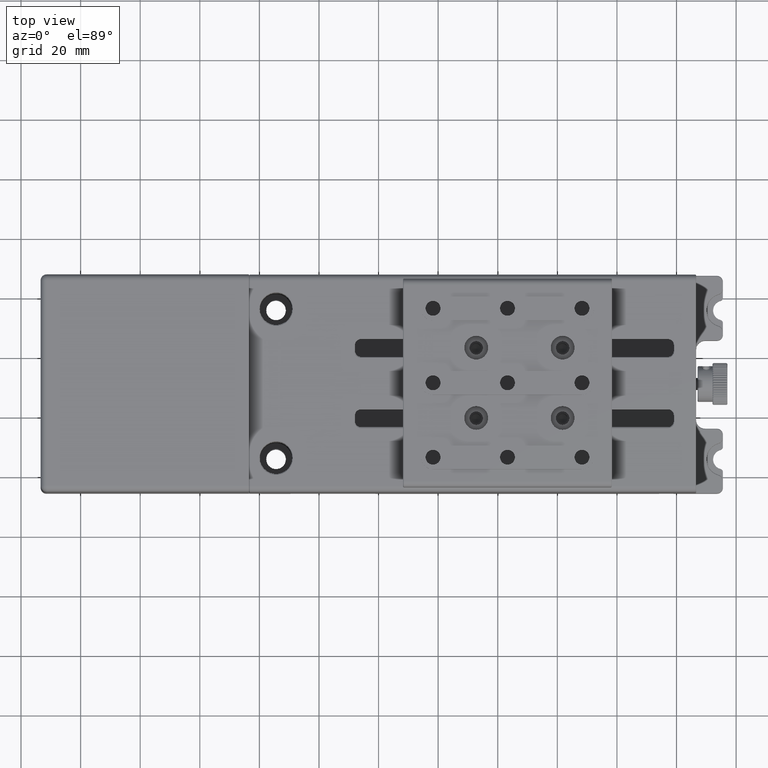
[diagram: clean part render]
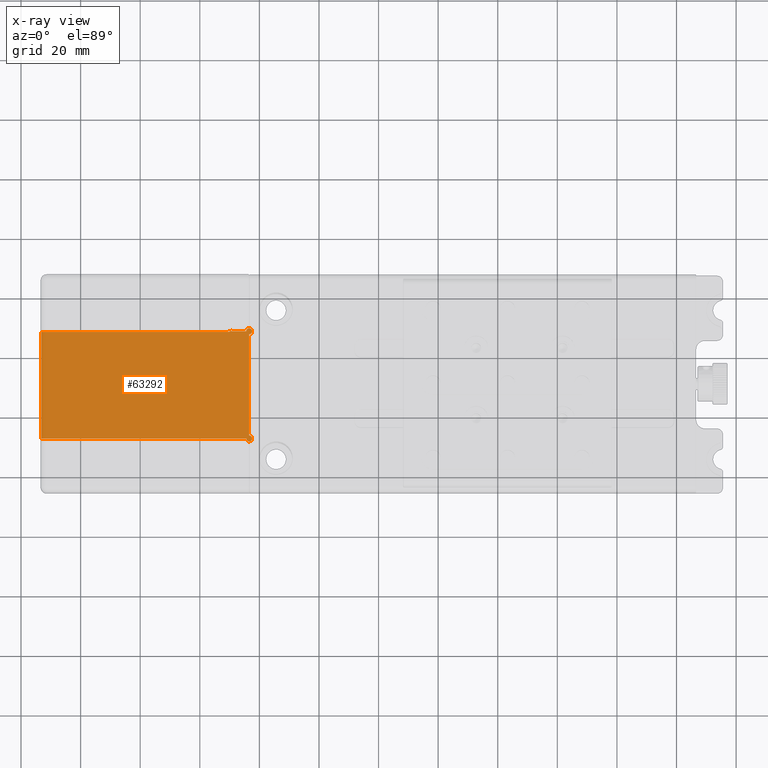
[diagram: x-ray — body ghosted, one internal face saturated and labeled with its STEP entity id]
A machine part, top view, then the same camera in x-ray: the body is ghosted and one INTERNAL B-rep face — a face not visible from any outside direction — is saturated and labeled: STEP entity #63292.
In plain terms, the highlighted planar face has unit normal (0, 0, 1).
Its self-contained STEP definition (entity closure, byte-faithful):
#7 = PLANE ( 'NONE',  #30559 ) ;
#781 = LINE ( 'NONE', #34379, #58606 ) ;
#801 = CARTESIAN_POINT ( 'NONE',  ( -89.42525998140230570, 9.367477591676118820, -3.000000000000000000 ) ) ;
#1247 = CIRCLE ( 'NONE', #4775, 1.000000000000000888 ) ;
#2485 = DIRECTION ( 'NONE',  ( 1.000000000000000000, 0.000000000000000000, 0.000000000000000000 ) ) ;
#3500 = EDGE_CURVE ( 'NONE', #70101, #24458, #3910, .T. ) ;
#3910 = LINE ( 'NONE', #65853, #70613 ) ;
#4615 = ORIENTED_EDGE ( 'NONE', *, *, #52263, .T. ) ;
#4775 = AXIS2_PLACEMENT_3D ( 'NONE', #22743, #55557, #33079 ) ;
#5593 = LINE ( 'NONE', #46146, #70394 ) ;
#6591 = CARTESIAN_POINT ( 'NONE',  ( -90.42525998140230570, 8.830802549747209795, -3.000000000000000000 ) ) ;
#8951 = CARTESIAN_POINT ( 'NONE',  ( -90.42525998140230570, 10.03080254974721974, -3.000000000000000000 ) ) ;
#9064 = AXIS2_PLACEMENT_3D ( 'NONE', #8951, #26312, #58749 ) ;
#10655 = LINE ( 'NONE', #21737, #65155 ) ;
#11822 = FACE_OUTER_BOUND ( 'NONE', #36648, .T. ) ;
#11973 = CARTESIAN_POINT ( 'NONE',  ( -153.4252599814024904, -26.96919745025279624, -3.000000000000000000 ) ) ;
#12900 = DIRECTION ( 'NONE',  ( 0.000000000000000000, 0.000000000000000000, 1.000000000000000000 ) ) ;
#13110 = VERTEX_POINT ( 'NONE', #14148 ) ;
#13410 = VERTEX_POINT ( 'NONE', #58337 ) ;
#14148 = CARTESIAN_POINT ( 'NONE',  ( -84.42525998140229149, -26.96919745025279624, -3.000000000000000000 ) ) ;
#15298 = CARTESIAN_POINT ( 'NONE',  ( -83.42525998140230570, -26.96919745025279624, -3.000000000000000000 ) ) ;
#16621 = EDGE_CURVE ( 'NONE', #30683, #70101, #63309, .T. ) ;
#17027 = DIRECTION ( 'NONE',  ( 0.000000000000000000, 0.000000000000000000, 1.000000000000000000 ) ) ;
#17694 = ORIENTED_EDGE ( 'NONE', *, *, #34102, .T. ) ;
#19442 = EDGE_CURVE ( 'NONE', #57499, #24204, #49325, .T. ) ;
#21737 = CARTESIAN_POINT ( 'NONE',  ( -83.42525998140230570, 9.030802549747210861, -3.000000000000000000 ) ) ;
#22179 = CARTESIAN_POINT ( 'NONE',  ( -153.4252599814024904, 26.03080254974719665, -3.000000000000000000 ) ) ;
#22743 = CARTESIAN_POINT ( 'NONE',  ( -83.42525998140230570, 9.030802549747210861, -3.000000000000000000 ) ) ;
#24204 = VERTEX_POINT ( 'NONE', #36168 ) ;
#24458 = VERTEX_POINT ( 'NONE', #61908 ) ;
#25343 = ORIENTED_EDGE ( 'NONE', *, *, #68075, .T. ) ;
#25694 = DIRECTION ( 'NONE',  ( -1.000000000000000000, 0.000000000000000000, 0.000000000000000000 ) ) ;
#26312 = DIRECTION ( 'NONE',  ( 0.000000000000000000, 0.000000000000000000, -1.000000000000000000 ) ) ;
#28088 = DIRECTION ( 'NONE',  ( 0.000000000000000000, 0.000000000000000000, 1.000000000000000000 ) ) ;
#28118 = DIRECTION ( 'NONE',  ( 0.000000000000000000, -1.000000000000000000, 0.000000000000000000 ) ) ;
#30559 = AXIS2_PLACEMENT_3D ( 'NONE', #22179, #28088, #50927 ) ;
#30683 = VERTEX_POINT ( 'NONE', #801 ) ;
#30958 = ORIENTED_EDGE ( 'NONE', *, *, #55606, .T. ) ;
#32799 = DIRECTION ( 'NONE',  ( 0.000000000000000000, 1.000000000000000000, 0.000000000000000000 ) ) ;
#32894 = CARTESIAN_POINT ( 'NONE',  ( -83.42525998140230570, -26.96919745025279624, -3.000000000000000000 ) ) ;
#33079 = DIRECTION ( 'NONE',  ( 1.000000000000000000, 0.000000000000000000, 0.000000000000000000 ) ) ;
#33442 = CIRCLE ( 'NONE', #62923, 1.000000000000000888 ) ;
#34102 = EDGE_CURVE ( 'NONE', #72892, #13110, #45547, .T. ) ;
#34379 = CARTESIAN_POINT ( 'NONE',  ( -153.4252599814024904, 9.030802549747210861, -3.000000000000000000 ) ) ;
#36168 = CARTESIAN_POINT ( 'NONE',  ( -82.42525998140230570, 9.030802549747210861, -3.000000000000000000 ) ) ;
#36648 = EDGE_LOOP ( 'NONE', ( #57105, #37797, #70025, #48075, #17694, #25343, #30958, #57078, #42074, #38704, #4615 ) ) ;
#37797 = ORIENTED_EDGE ( 'NONE', *, *, #16621, .T. ) ;
#38303 = CARTESIAN_POINT ( 'NONE',  ( -153.2252599814025018, -26.96919745025279624, -3.000000000000000000 ) ) ;
#38377 = DIRECTION ( 'NONE',  ( 1.224646799147351975E-16, -1.000000000000000000, 0.000000000000000000 ) ) ;
#38589 = VERTEX_POINT ( 'NONE', #44340 ) ;
#38704 = ORIENTED_EDGE ( 'NONE', *, *, #64151, .T. ) ;
#38740 = LINE ( 'NONE', #61208, #72433 ) ;
#38876 = AXIS2_PLACEMENT_3D ( 'NONE', #15298, #54382, #2485 ) ;
#38933 = EDGE_CURVE ( 'NONE', #24458, #72892, #38740, .T. ) ;
#39685 = DIRECTION ( 'NONE',  ( 1.000000000000000000, 0.000000000000000000, 0.000000000000000000 ) ) ;
#41681 = DIRECTION ( 'NONE',  ( 1.000000000000000000, 0.000000000000000000, 0.000000000000000000 ) ) ;
#42074 = ORIENTED_EDGE ( 'NONE', *, *, #19442, .T. ) ;
#43596 = DIRECTION ( 'NONE',  ( 1.000000000000000000, 0.000000000000000000, 0.000000000000000000 ) ) ;
#44340 = CARTESIAN_POINT ( 'NONE',  ( -82.42525998140230570, -26.96919745025279624, -3.000000000000000000 ) ) ;
#45081 = DIRECTION ( 'NONE',  ( -1.000000000000000000, 4.956352788505159693E-17, 0.000000000000000000 ) ) ;
#45547 = LINE ( 'NONE', #11973, #48352 ) ;
#46146 = CARTESIAN_POINT ( 'NONE',  ( -89.42525998140230570, 27.53080254974720020, -3.000000000000000000 ) ) ;
#48075 = ORIENTED_EDGE ( 'NONE', *, *, #38933, .T. ) ;
#48352 = VECTOR ( 'NONE', #39685, 1000.000000000000000 ) ;
#49325 = CIRCLE ( 'NONE', #54018, 1.000000000000000888 ) ;
#50927 = DIRECTION ( 'NONE',  ( 1.000000000000000000, 0.000000000000000000, 0.000000000000000000 ) ) ;
#52194 = EDGE_CURVE ( 'NONE', #30683, #69087, #5593, .T. ) ;
#52263 = EDGE_CURVE ( 'NONE', #53842, #69087, #781, .T. ) ;
#53842 = VERTEX_POINT ( 'NONE', #71968 ) ;
#54018 = AXIS2_PLACEMENT_3D ( 'NONE', #63432, #12900, #41681 ) ;
#54382 = DIRECTION ( 'NONE',  ( 0.000000000000000000, 0.000000000000000000, 1.000000000000000000 ) ) ;
#55378 = CIRCLE ( 'NONE', #38876, 1.000000000000000888 ) ;
#55557 = DIRECTION ( 'NONE',  ( 0.000000000000000000, 0.000000000000000000, 1.000000000000000000 ) ) ;
#55606 = EDGE_CURVE ( 'NONE', #38589, #13410, #55378, .T. ) ;
#57078 = ORIENTED_EDGE ( 'NONE', *, *, #59821, .T. ) ;
#57105 = ORIENTED_EDGE ( 'NONE', *, *, #52194, .F. ) ;
#57499 = VERTEX_POINT ( 'NONE', #68147 ) ;
#58337 = CARTESIAN_POINT ( 'NONE',  ( -83.42525998140230570, -25.96919745025279980, -3.000000000000000000 ) ) ;
#58606 = VECTOR ( 'NONE', #45081, 1000.000000000000000 ) ;
#58749 = DIRECTION ( 'NONE',  ( 1.000000000000000000, 0.000000000000000000, 0.000000000000000000 ) ) ;
#59821 = EDGE_CURVE ( 'NONE', #13410, #57499, #10655, .T. ) ;
#61208 = CARTESIAN_POINT ( 'NONE',  ( -153.2252599814025018, -26.96919745025279624, -3.000000000000000000 ) ) ;
#61908 = CARTESIAN_POINT ( 'NONE',  ( -153.2252599814025018, 8.830802549747209795, -3.000000000000000000 ) ) ;
#62923 = AXIS2_PLACEMENT_3D ( 'NONE', #32894, #17027, #43596 ) ;
#63292 = ADVANCED_FACE ( 'NONE', ( #11822 ), #7, .T. ) ;
#63309 = CIRCLE ( 'NONE', #9064, 1.200000000000006617 ) ;
#63432 = CARTESIAN_POINT ( 'NONE',  ( -83.42525998140230570, 9.030802549747210861, -3.000000000000000000 ) ) ;
#64151 = EDGE_CURVE ( 'NONE', #24204, #53842, #1247, .T. ) ;
#65155 = VECTOR ( 'NONE', #32799, 1000.000000000000000 ) ;
#65853 = CARTESIAN_POINT ( 'NONE',  ( -153.4252599814024904, 8.830802549747209795, -3.000000000000000000 ) ) ;
#68075 = EDGE_CURVE ( 'NONE', #13110, #38589, #33442, .T. ) ;
#68147 = CARTESIAN_POINT ( 'NONE',  ( -83.42525998140230570, 8.030802549747209085, -3.000000000000000000 ) ) ;
#69087 = VERTEX_POINT ( 'NONE', #70704 ) ;
#70025 = ORIENTED_EDGE ( 'NONE', *, *, #3500, .T. ) ;
#70101 = VERTEX_POINT ( 'NONE', #6591 ) ;
#70394 = VECTOR ( 'NONE', #28118, 1000.000000000000000 ) ;
#70613 = VECTOR ( 'NONE', #25694, 1000.000000000000000 ) ;
#70704 = CARTESIAN_POINT ( 'NONE',  ( -89.42525998140230570, 9.030802549747210861, -3.000000000000000000 ) ) ;
#71968 = CARTESIAN_POINT ( 'NONE',  ( -84.42525998140229149, 9.030802549747210861, -3.000000000000000000 ) ) ;
#72433 = VECTOR ( 'NONE', #38377, 1000.000000000000000 ) ;
#72892 = VERTEX_POINT ( 'NONE', #38303 ) ;